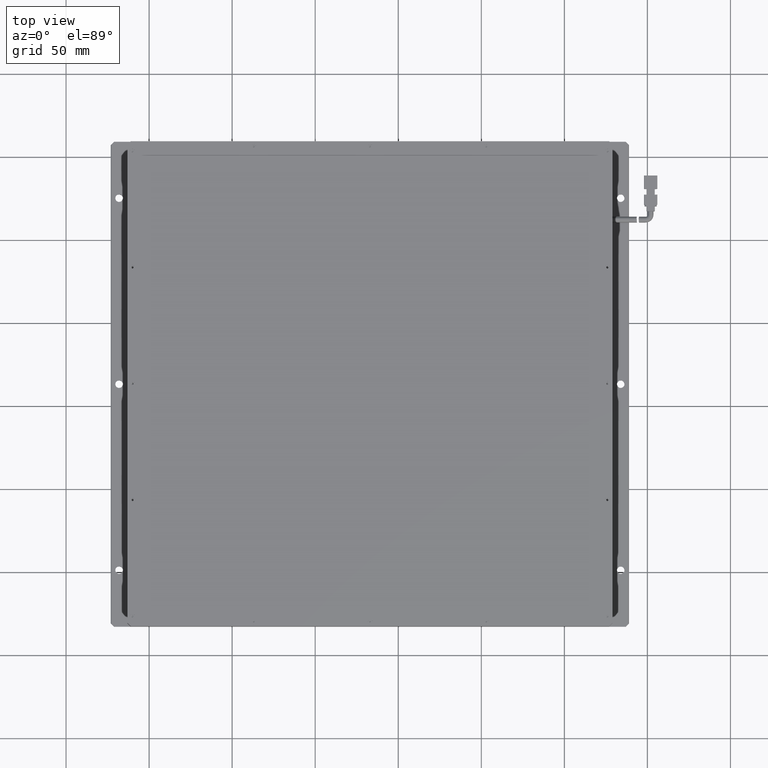
[diagram: clean part render]
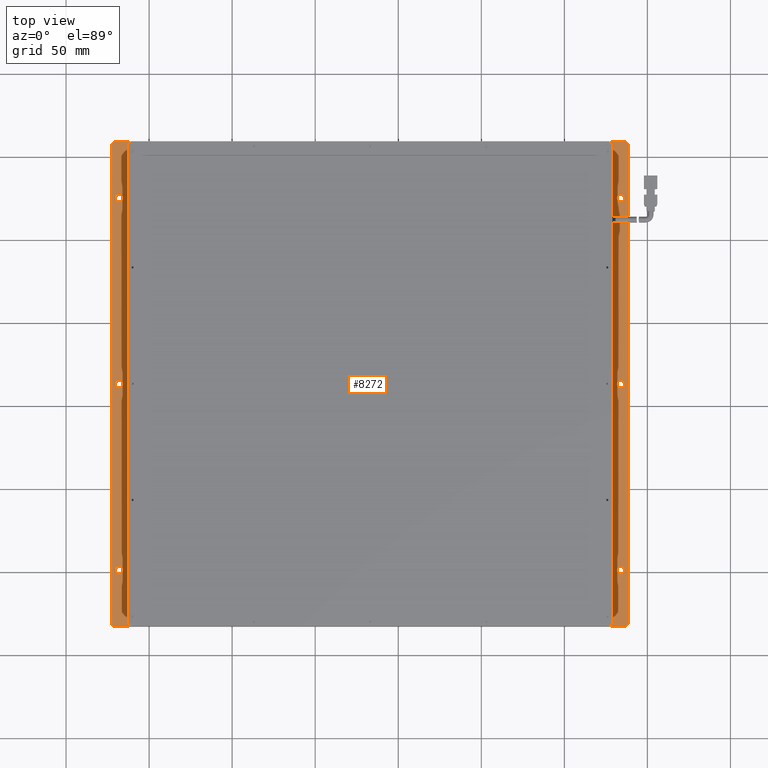
[diagram: same view with one face highlighted and labeled with its STEP entity id]
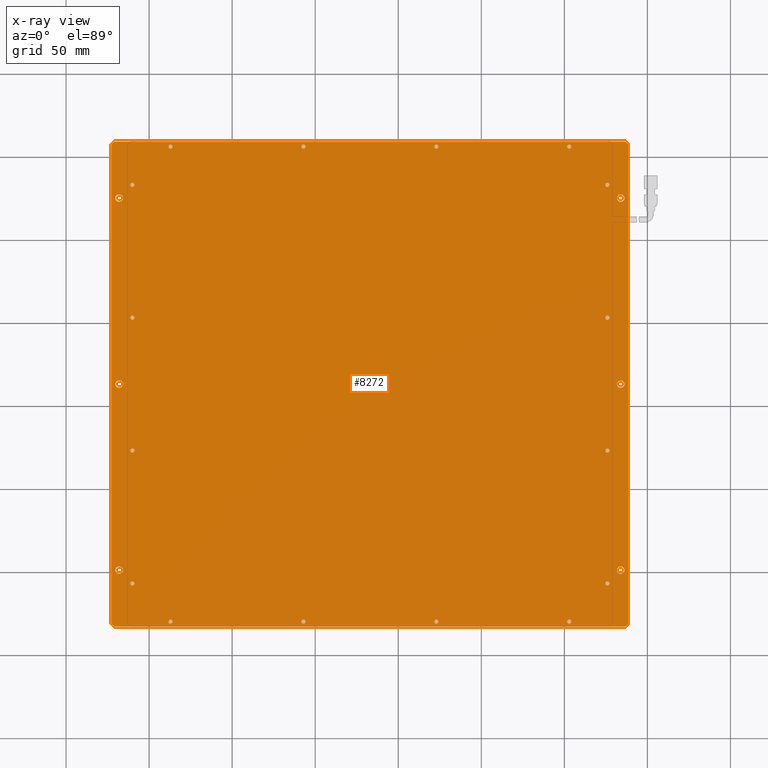
[diagram: x-ray of the same camera — body ghosted, the highlighted face saturated]
A machine part, top view. The second image highlights one B-rep face of the part: STEP entity #8272.
The next image is the same camera in x-ray: the body ghosted, the highlighted face saturated — about 0% of this face is hidden behind the body in this view.
In plain terms, the highlighted planar face has unit normal (0, 0, -1).
Its self-contained STEP definition (entity closure, byte-faithful):
#12 = EDGE_CURVE ( 'NONE', #18729, #13191, #3815, .T. ) ;
#20 = CARTESIAN_POINT ( 'NONE',  ( 177.1193228736580600, -106.7301954307733900, -7.000000000028193400 ) ) ;
#134 = VERTEX_POINT ( 'NONE', #12582 ) ;
#177 = DIRECTION ( 'NONE',  ( 1.000000000000000000, 0.0000000000000000000, 0.0000000000000000000 ) ) ;
#180 = AXIS2_PLACEMENT_3D ( 'NONE', #9994, #9920, #13667 ) ;
#382 = EDGE_CURVE ( 'NONE', #12343, #22332, #19357, .T. ) ;
#425 = ORIENTED_EDGE ( 'NONE', *, *, #3589, .F. ) ;
#486 = EDGE_CURVE ( 'NONE', #13191, #18729, #14755, .T. ) ;
#501 = VERTEX_POINT ( 'NONE', #4826 ) ;
#569 = CIRCLE ( 'NONE', #10581, 2.249999999999974200 ) ;
#608 = FACE_BOUND ( 'NONE', #18105, .T. ) ;
#668 = CARTESIAN_POINT ( 'NONE',  ( -118.0806771263419100, 13.26980456922663400, -7.000000000028193400 ) ) ;
#706 = ORIENTED_EDGE ( 'NONE', *, *, #1933, .F. ) ;
#760 = EDGE_CURVE ( 'NONE', #19823, #15075, #14714, .T. ) ;
#846 = AXIS2_PLACEMENT_3D ( 'NONE', #12182, #1121, #1282 ) ;
#858 = EDGE_LOOP ( 'NONE', ( #23869, #8561 ) ) ;
#996 = EDGE_LOOP ( 'NONE', ( #17823, #22854, #18950, #22894, #12957, #706, #3669, #19163 ) ) ;
#1022 = CARTESIAN_POINT ( 'NONE',  ( 186.9193228736580500, 159.2698045692266900, -7.000000000028196100 ) ) ;
#1040 = CARTESIAN_POINT ( 'NONE',  ( -85.88067712634190800, -129.7301954307733600, -7.000000000028193400 ) ) ;
#1077 = CARTESIAN_POINT ( 'NONE',  ( -122.5806771263419100, 157.7698045692266400, -7.000000000028194300 ) ) ;
#1094 = EDGE_CURVE ( 'NONE', #16707, #134, #5084, .T. ) ;
#1121 = DIRECTION ( 'NONE',  ( 0.0000000000000000000, 0.0000000000000000000, 1.000000000000000000 ) ) ;
#1134 = AXIS2_PLACEMENT_3D ( 'NONE', #18112, #7018, #10968 ) ;
#1142 = DIRECTION ( 'NONE',  ( -1.000000000000000000, 0.0000000000000000000, 0.0000000000000000000 ) ) ;
#1178 = DIRECTION ( 'NONE',  ( -1.000000000000000000, 0.0000000000000000000, 0.0000000000000000000 ) ) ;
#1282 = DIRECTION ( 'NONE',  ( -1.000000000000000000, 0.0000000000000000000, 0.0000000000000000000 ) ) ;
#1497 = ORIENTED_EDGE ( 'NONE', *, *, #12234, .F. ) ;
#1502 = CIRCLE ( 'NONE', #18999, 1.199999999999992600 ) ;
#1840 = VERTEX_POINT ( 'NONE', #20 ) ;
#1850 = CARTESIAN_POINT ( 'NONE',  ( 174.7193228736580900, -106.7301954307733900, -7.000000000028193400 ) ) ;
#1933 = EDGE_CURVE ( 'NONE', #17811, #18976, #17743, .T. ) ;
#1958 = VERTEX_POINT ( 'NONE', #14095 ) ;
#1960 = CARTESIAN_POINT ( 'NONE',  ( 186.1693228736580700, 13.26980456922655100, -7.000000000028193400 ) ) ;
#2043 = CIRCLE ( 'NONE', #20009, 2.249999999999974200 ) ;
#2094 = AXIS2_PLACEMENT_3D ( 'NONE', #7786, #20633, #16926 ) ;
#2126 = EDGE_LOOP ( 'NONE', ( #18806, #5449 ) ) ;
#2180 = VERTEX_POINT ( 'NONE', #21662 ) ;
#2225 = DIRECTION ( 'NONE',  ( 0.0000000000000000000, 0.0000000000000000000, 1.000000000000000000 ) ) ;
#2285 = ORIENTED_EDGE ( 'NONE', *, *, #10576, .F. ) ;
#2322 = CIRCLE ( 'NONE', #10334, 2.249999999999974200 ) ;
#2331 = FACE_BOUND ( 'NONE', #8027, .T. ) ;
#2357 = CARTESIAN_POINT ( 'NONE',  ( -122.5806771263419100, -131.2301954307733900, -7.000000000028197000 ) ) ;
#2516 = EDGE_CURVE ( 'NONE', #11802, #12249, #9592, .T. ) ;
#2619 = CIRCLE ( 'NONE', #22644, 1.199999999999978900 ) ;
#2623 = DIRECTION ( 'NONE',  ( -1.000000000000000000, 0.0000000000000000000, 0.0000000000000000000 ) ) ;
#2636 = CARTESIAN_POINT ( 'NONE',  ( -110.0806771263419100, 133.2698045692266100, -7.000000000028193400 ) ) ;
#2655 = CARTESIAN_POINT ( 'NONE',  ( 188.4193228736579900, 157.7698045692267200, -7.000000000028197900 ) ) ;
#2692 = DIRECTION ( 'NONE',  ( 0.0000000000000000000, 0.0000000000000000000, 1.000000000000000000 ) ) ;
#2716 = DIRECTION ( 'NONE',  ( 0.0000000000000000000, 0.0000000000000000000, 1.000000000000000000 ) ) ;
#2749 = CARTESIAN_POINT ( 'NONE',  ( -110.0806771263419100, -26.73019543077340300, -7.000000000028193400 ) ) ;
#2755 = DIRECTION ( 'NONE',  ( 0.7071067811865483500, 0.7071067811865468000, 0.0000000000000000000 ) ) ;
#2759 = ORIENTED_EDGE ( 'NONE', *, *, #19570, .F. ) ;
#2890 = FACE_BOUND ( 'NONE', #10469, .T. ) ;
#2893 = DIRECTION ( 'NONE',  ( 0.0000000000000000000, 0.0000000000000000000, 1.000000000000000000 ) ) ;
#2909 = CIRCLE ( 'NONE', #21056, 1.199999999999992600 ) ;
#2939 = DIRECTION ( 'NONE',  ( 0.0000000000000000000, 0.0000000000000000000, 1.000000000000000000 ) ) ;
#2947 = DIRECTION ( 'NONE',  ( -0.0000000000000000000, -0.0000000000000000000, 1.000000000000000000 ) ) ;
#2998 = DIRECTION ( 'NONE',  ( -0.0000000000000000000, -0.0000000000000000000, 1.000000000000000000 ) ) ;
#3027 = CARTESIAN_POINT ( 'NONE',  ( 188.4193228736579900, -131.2301954307734800, -7.000000000028194300 ) ) ;
#3070 = CARTESIAN_POINT ( 'NONE',  ( 183.9193228736580700, 125.2698045692265400, -7.000000000028193400 ) ) ;
#3085 = DIRECTION ( 'NONE',  ( 0.0000000000000000000, 0.0000000000000000000, 1.000000000000000000 ) ) ;
#3097 = CARTESIAN_POINT ( 'NONE',  ( -8.280677126341910100, -129.7301954307733600, -7.000000000028193400 ) ) ;
#3128 = AXIS2_PLACEMENT_3D ( 'NONE', #19579, #10360, #21357 ) ;
#3133 = AXIS2_PLACEMENT_3D ( 'NONE', #16567, #23709, #3399 ) ;
#3293 = DIRECTION ( 'NONE',  ( -1.000000000000000000, 0.0000000000000000000, 0.0000000000000000000 ) ) ;
#3298 = CARTESIAN_POINT ( 'NONE',  ( -110.0806771263419100, -26.73019543077340300, -7.000000000028193400 ) ) ;
#3378 = CIRCLE ( 'NONE', #14467, 2.249999999999974200 ) ;
#3399 = DIRECTION ( 'NONE',  ( -1.000000000000000000, 0.0000000000000000000, 0.0000000000000000000 ) ) ;
#3473 = FACE_BOUND ( 'NONE', #16353, .T. ) ;
#3589 = EDGE_CURVE ( 'NONE', #19205, #21531, #22202, .T. ) ;
#3592 = EDGE_CURVE ( 'NONE', #16284, #9391, #6603, .T. ) ;
#3602 = VERTEX_POINT ( 'NONE', #6213 ) ;
#3606 = EDGE_CURVE ( 'NONE', #9342, #23451, #7491, .T. ) ;
#3642 = CARTESIAN_POINT ( 'NONE',  ( -111.2806771263419000, 133.2698045692266100, -7.000000000028193400 ) ) ;
#3659 = EDGE_CURVE ( 'NONE', #7143, #10177, #10364, .T. ) ;
#3669 = ORIENTED_EDGE ( 'NONE', *, *, #14478, .F. ) ;
#3701 = CARTESIAN_POINT ( 'NONE',  ( 188.4193228736579900, 159.2698045692266400, -7.000000000028194300 ) ) ;
#3741 = EDGE_CURVE ( 'NONE', #11503, #17966, #13584, .T. ) ;
#3749 = FACE_BOUND ( 'NONE', #9406, .T. ) ;
#3781 = AXIS2_PLACEMENT_3D ( 'NONE', #14416, #7034, #19959 ) ;
#3815 = CIRCLE ( 'NONE', #3128, 1.199999999999992600 ) ;
#3918 = ORIENTED_EDGE ( 'NONE', *, *, #9599, .F. ) ;
#3953 = DIRECTION ( 'NONE',  ( 0.7071067811865606700, -0.7071067811865344700, 0.0000000000000000000 ) ) ;
#4013 = DIRECTION ( 'NONE',  ( -1.000000000000000000, 0.0000000000000000000, 0.0000000000000000000 ) ) ;
#4300 = CARTESIAN_POINT ( 'NONE',  ( 175.9193228736580700, -26.73019543077340300, -7.000000000028193400 ) ) ;
#4310 = FACE_BOUND ( 'NONE', #7032, .T. ) ;
#4503 = AXIS2_PLACEMENT_3D ( 'NONE', #668, #9976, #15644 ) ;
#4556 = ORIENTED_EDGE ( 'NONE', *, *, #6688, .F. ) ;
#4586 = CIRCLE ( 'NONE', #17826, 1.199999999999978900 ) ;
#4761 = CARTESIAN_POINT ( 'NONE',  ( 175.9193228736580700, -106.7301954307733900, -7.000000000028193400 ) ) ;
#4826 = CARTESIAN_POINT ( 'NONE',  ( -121.0806771263419100, 159.2698045692266400, -7.000000000028194300 ) ) ;
#4827 = EDGE_LOOP ( 'NONE', ( #14541, #1497 ) ) ;
#4833 = CIRCLE ( 'NONE', #14144, 1.199999999999992600 ) ;
#4862 = DIRECTION ( 'NONE',  ( -0.7071067811865474600, 0.7071067811865474600, 0.0000000000000000000 ) ) ;
#4931 = EDGE_CURVE ( 'NONE', #18751, #23355, #9337, .T. ) ;
#4981 = CARTESIAN_POINT ( 'NONE',  ( 175.9193228736580700, 133.2698045692266100, -7.000000000028193400 ) ) ;
#5023 = DIRECTION ( 'NONE',  ( 1.000000000000000000, 0.0000000000000000000, 0.0000000000000000000 ) ) ;
#5061 = CIRCLE ( 'NONE', #11238, 1.199999999999978900 ) ;
#5084 = CIRCLE ( 'NONE', #10247, 1.199999999999978900 ) ;
#5113 = CARTESIAN_POINT ( 'NONE',  ( 181.6693228736581000, -98.73019543077344900, -7.000000000028193400 ) ) ;
#5115 = EDGE_CURVE ( 'NONE', #12249, #11802, #7303, .T. ) ;
#5128 = VECTOR ( 'NONE', #12300, 1000.000000000000000 ) ;
#5144 = DIRECTION ( 'NONE',  ( -1.000000000000000000, 0.0000000000000000000, 0.0000000000000000000 ) ) ;
#5174 = CIRCLE ( 'NONE', #9046, 1.199999999999992600 ) ;
#5231 = CARTESIAN_POINT ( 'NONE',  ( 186.1693228736580700, -98.73019543077344900, -7.000000000028193400 ) ) ;
#5263 = EDGE_CURVE ( 'NONE', #2180, #17750, #21438, .T. ) ;
#5360 = VERTEX_POINT ( 'NONE', #16450 ) ;
#5370 = CIRCLE ( 'NONE', #17714, 1.199999999999978900 ) ;
#5382 = DIRECTION ( 'NONE',  ( -0.0000000000000000000, -0.0000000000000000000, 1.000000000000000000 ) ) ;
#5449 = ORIENTED_EDGE ( 'NONE', *, *, #16594, .F. ) ;
#5523 = DIRECTION ( 'NONE',  ( -1.000000000000000000, 0.0000000000000000000, 0.0000000000000000000 ) ) ;
#5608 = CARTESIAN_POINT ( 'NONE',  ( 177.1193228736580600, 53.26980456922658600, -7.000000000028193400 ) ) ;
#5646 = ORIENTED_EDGE ( 'NONE', *, *, #13787, .F. ) ;
#5735 = PLANE ( 'NONE',  #6545 ) ;
#5736 = EDGE_CURVE ( 'NONE', #8370, #6706, #23134, .T. ) ;
#5899 = CIRCLE ( 'NONE', #6130, 2.249999999999988000 ) ;
#5932 = VERTEX_POINT ( 'NONE', #21747 ) ;
#6013 = AXIS2_PLACEMENT_3D ( 'NONE', #20997, #6136, #11666 ) ;
#6039 = CARTESIAN_POINT ( 'NONE',  ( 151.7193228736580900, -129.7301954307733600, -7.000000000028193400 ) ) ;
#6048 = FACE_BOUND ( 'NONE', #16984, .T. ) ;
#6118 = VERTEX_POINT ( 'NONE', #1850 ) ;
#6130 = AXIS2_PLACEMENT_3D ( 'NONE', #22912, #11821, #15665 ) ;
#6136 = DIRECTION ( 'NONE',  ( 0.0000000000000000000, 0.0000000000000000000, 1.000000000000000000 ) ) ;
#6213 = CARTESIAN_POINT ( 'NONE',  ( -111.2806771263419000, 53.26980456922658600, -7.000000000028193400 ) ) ;
#6214 = CARTESIAN_POINT ( 'NONE',  ( -115.8306771263419100, 125.2698045692265900, -7.000000000028193400 ) ) ;
#6218 = DIRECTION ( 'NONE',  ( 0.0000000000000000000, 0.0000000000000000000, -1.000000000000000000 ) ) ;
#6340 = EDGE_CURVE ( 'NONE', #1840, #6118, #5061, .T. ) ;
#6460 = VERTEX_POINT ( 'NONE', #14499 ) ;
#6545 = AXIS2_PLACEMENT_3D ( 'NONE', #8169, #6218, #22841 ) ;
#6593 = DIRECTION ( 'NONE',  ( 1.000000000000000000, 0.0000000000000000000, 0.0000000000000000000 ) ) ;
#6599 = CARTESIAN_POINT ( 'NONE',  ( -88.28067712634189900, 156.2698045692266400, -7.000000000028193400 ) ) ;
#6603 = CIRCLE ( 'NONE', #180, 1.199999999999992600 ) ;
#6624 = DIRECTION ( 'NONE',  ( 0.0000000000000000000, 0.0000000000000000000, 1.000000000000000000 ) ) ;
#6688 = EDGE_CURVE ( 'NONE', #6706, #8370, #5899, .T. ) ;
#6691 = ORIENTED_EDGE ( 'NONE', *, *, #5263, .F. ) ;
#6697 = CARTESIAN_POINT ( 'NONE',  ( -123.0806771263419100, 159.2698045692266400, -7.000000000028194300 ) ) ;
#6706 = VERTEX_POINT ( 'NONE', #6214 ) ;
#6732 = EDGE_LOOP ( 'NONE', ( #11027, #17500 ) ) ;
#6805 = DIRECTION ( 'NONE',  ( 0.0000000000000000000, 0.0000000000000000000, 1.000000000000000000 ) ) ;
#6825 = EDGE_CURVE ( 'NONE', #23471, #14030, #10810, .T. ) ;
#6913 = CIRCLE ( 'NONE', #20015, 1.199999999999978900 ) ;
#6930 = AXIS2_PLACEMENT_3D ( 'NONE', #2636, #2716, #15553 ) ;
#6993 = CARTESIAN_POINT ( 'NONE',  ( -118.0806771263419100, -98.73019543077346300, -7.000000000028193400 ) ) ;
#7011 = EDGE_LOOP ( 'NONE', ( #6691, #15110 ) ) ;
#7018 = DIRECTION ( 'NONE',  ( 0.0000000000000000000, 0.0000000000000000000, 1.000000000000000000 ) ) ;
#7032 = EDGE_LOOP ( 'NONE', ( #16220, #12638 ) ) ;
#7034 = DIRECTION ( 'NONE',  ( -0.0000000000000000000, -0.0000000000000000000, 1.000000000000000000 ) ) ;
#7142 = CIRCLE ( 'NONE', #21807, 1.199999999999978900 ) ;
#7143 = VERTEX_POINT ( 'NONE', #21932 ) ;
#7191 = AXIS2_PLACEMENT_3D ( 'NONE', #17735, #19566, #8502 ) ;
#7232 = DIRECTION ( 'NONE',  ( 0.0000000000000000000, 0.0000000000000000000, 1.000000000000000000 ) ) ;
#7303 = CIRCLE ( 'NONE', #4503, 2.249999999999988000 ) ;
#7403 = AXIS2_PLACEMENT_3D ( 'NONE', #17833, #6805, #14291 ) ;
#7485 = CIRCLE ( 'NONE', #8296, 1.199999999999978900 ) ;
#7487 = EDGE_CURVE ( 'NONE', #18529, #10849, #9590, .T. ) ;
#7491 = CIRCLE ( 'NONE', #22094, 1.199999999999992600 ) ;
#7554 = AXIS2_PLACEMENT_3D ( 'NONE', #10303, #21392, #17775 ) ;
#7621 = DIRECTION ( 'NONE',  ( -1.000000000000000000, 0.0000000000000000000, 0.0000000000000000000 ) ) ;
#7772 = DIRECTION ( 'NONE',  ( -1.000000000000000000, 0.0000000000000000000, 0.0000000000000000000 ) ) ;
#7786 = CARTESIAN_POINT ( 'NONE',  ( -110.0806771263419100, 133.2698045692266100, -7.000000000028193400 ) ) ;
#7857 = DIRECTION ( 'NONE',  ( -1.000000000000000000, 0.0000000000000000000, 0.0000000000000000000 ) ) ;
#7868 = DIRECTION ( 'NONE',  ( 0.0000000000000000000, 0.0000000000000000000, 1.000000000000000000 ) ) ;
#7875 = EDGE_CURVE ( 'NONE', #17750, #2180, #6913, .T. ) ;
#8027 = EDGE_LOOP ( 'NONE', ( #14846, #20096 ) ) ;
#8066 = CIRCLE ( 'NONE', #17917, 1.199999999999978900 ) ;
#8077 = AXIS2_PLACEMENT_3D ( 'NONE', #10327, #2692, #20289 ) ;
#8078 = FACE_BOUND ( 'NONE', #6732, .T. ) ;
#8154 = EDGE_CURVE ( 'NONE', #23161, #5360, #5174, .T. ) ;
#8169 = CARTESIAN_POINT ( 'NONE',  ( -123.0806771263419100, 159.2698045692266400, -7.000000000028194300 ) ) ;
#8192 = EDGE_CURVE ( 'NONE', #14928, #14734, #2619, .T. ) ;
#8268 = ORIENTED_EDGE ( 'NONE', *, *, #5736, .F. ) ;
#8272 = ADVANCED_FACE ( 'NONE', ( #20225, #14163, #14752, #12141, #2331, #3473, #608, #18228, #15319, #8078, #4310, #18498, #13881, #19628, #2890, #13592, #6048, #21934, #8642, #3749, #10372, #8951, #17056 ), #5735, .F. ) ;
#8296 = AXIS2_PLACEMENT_3D ( 'NONE', #4981, #10661, #5144 ) ;
#8370 = VERTEX_POINT ( 'NONE', #15204 ) ;
#8474 = DIRECTION ( 'NONE',  ( 1.000000000000000000, 0.0000000000000000000, 0.0000000000000000000 ) ) ;
#8487 = CARTESIAN_POINT ( 'NONE',  ( -122.5806771263419100, 159.2698045692266400, -7.000000000028194300 ) ) ;
#8502 = DIRECTION ( 'NONE',  ( 1.000000000000000000, 0.0000000000000000000, 0.0000000000000000000 ) ) ;
#8519 = ORIENTED_EDGE ( 'NONE', *, *, #4931, .F. ) ;
#8561 = ORIENTED_EDGE ( 'NONE', *, *, #21651, .F. ) ;
#8642 = FACE_BOUND ( 'NONE', #2126, .T. ) ;
#8644 = EDGE_CURVE ( 'NONE', #23873, #22064, #569, .T. ) ;
#8648 = AXIS2_PLACEMENT_3D ( 'NONE', #6993, #19922, #5023 ) ;
#8713 = EDGE_CURVE ( 'NONE', #18976, #9573, #18145, .T. ) ;
#8951 = FACE_BOUND ( 'NONE', #10352, .T. ) ;
#9045 = CARTESIAN_POINT ( 'NONE',  ( -5.880677126341924000, -129.7301954307733600, -7.000000000028193400 ) ) ;
#9046 = AXIS2_PLACEMENT_3D ( 'NONE', #14168, #3085, #16011 ) ;
#9090 = CARTESIAN_POINT ( 'NONE',  ( -118.0806771263419100, 13.26980456922663400, -7.000000000028193400 ) ) ;
#9281 = CARTESIAN_POINT ( 'NONE',  ( 186.9193228736580500, 159.2698045692266900, -7.000000000028194300 ) ) ;
#9314 = ORIENTED_EDGE ( 'NONE', *, *, #17944, .F. ) ;
#9320 = EDGE_CURVE ( 'NONE', #23355, #18751, #16508, .T. ) ;
#9337 = CIRCLE ( 'NONE', #8077, 1.199999999999992600 ) ;
#9342 = VERTEX_POINT ( 'NONE', #20946 ) ;
#9375 = DIRECTION ( 'NONE',  ( 0.0000000000000000000, 0.0000000000000000000, 1.000000000000000000 ) ) ;
#9391 = VERTEX_POINT ( 'NONE', #3097 ) ;
#9393 = CARTESIAN_POINT ( 'NONE',  ( -118.0806771263419100, -98.73019543077346300, -7.000000000028193400 ) ) ;
#9406 = EDGE_LOOP ( 'NONE', ( #23375, #10401 ) ) ;
#9573 = VERTEX_POINT ( 'NONE', #19889 ) ;
#9590 = CIRCLE ( 'NONE', #7403, 1.199999999999992600 ) ;
#9592 = CIRCLE ( 'NONE', #10786, 2.249999999999988000 ) ;
#9599 = EDGE_CURVE ( 'NONE', #21782, #3602, #1502, .T. ) ;
#9696 = EDGE_LOOP ( 'NONE', ( #8519, #19580 ) ) ;
#9713 = CARTESIAN_POINT ( 'NONE',  ( 152.9193228736580500, 156.2698045692266400, -7.000000000028193400 ) ) ;
#9898 = DIRECTION ( 'NONE',  ( 0.0000000000000000000, 0.0000000000000000000, 1.000000000000000000 ) ) ;
#9912 = EDGE_CURVE ( 'NONE', #16597, #5932, #2322, .T. ) ;
#9920 = DIRECTION ( 'NONE',  ( 0.0000000000000000000, 0.0000000000000000000, 1.000000000000000000 ) ) ;
#9976 = DIRECTION ( 'NONE',  ( -0.0000000000000000000, -0.0000000000000000000, 1.000000000000000000 ) ) ;
#9980 = CARTESIAN_POINT ( 'NONE',  ( -108.8806771263419200, 53.26980456922658600, -7.000000000028193400 ) ) ;
#9994 = CARTESIAN_POINT ( 'NONE',  ( -7.080677126341916100, -129.7301954307733600, -7.000000000028193400 ) ) ;
#10057 = CARTESIAN_POINT ( 'NONE',  ( -115.8306771263419100, -98.73019543077346300, -7.000000000028193400 ) ) ;
#10113 = AXIS2_PLACEMENT_3D ( 'NONE', #11952, #2893, #15807 ) ;
#10177 = VERTEX_POINT ( 'NONE', #2357 ) ;
#10247 = AXIS2_PLACEMENT_3D ( 'NONE', #9713, #17738, #10266 ) ;
#10266 = DIRECTION ( 'NONE',  ( -1.000000000000000000, 0.0000000000000000000, 0.0000000000000000000 ) ) ;
#10303 = CARTESIAN_POINT ( 'NONE',  ( 175.9193228736580700, 133.2698045692266100, -7.000000000028193400 ) ) ;
#10327 = CARTESIAN_POINT ( 'NONE',  ( -7.080677126341916100, 156.2698045692266400, -7.000000000028193400 ) ) ;
#10329 = CARTESIAN_POINT ( 'NONE',  ( 72.91932287365810300, -129.7301954307733600, -7.000000000028193400 ) ) ;
#10334 = AXIS2_PLACEMENT_3D ( 'NONE', #3070, #17870, #6593 ) ;
#10348 = CARTESIAN_POINT ( 'NONE',  ( -85.88067712634190800, 156.2698045692266400, -7.000000000028193400 ) ) ;
#10352 = EDGE_LOOP ( 'NONE', ( #12105, #23169 ) ) ;
#10360 = DIRECTION ( 'NONE',  ( 0.0000000000000000000, 0.0000000000000000000, 1.000000000000000000 ) ) ;
#10364 = LINE ( 'NONE', #22680, #16745 ) ;
#10372 = FACE_BOUND ( 'NONE', #9696, .T. ) ;
#10386 = CIRCLE ( 'NONE', #13107, 2.249999999999988000 ) ;
#10401 = ORIENTED_EDGE ( 'NONE', *, *, #15937, .F. ) ;
#10404 = EDGE_CURVE ( 'NONE', #11413, #13670, #20167, .T. ) ;
#10443 = CARTESIAN_POINT ( 'NONE',  ( -110.0806771263419100, -106.7301954307733900, -7.000000000028193400 ) ) ;
#10468 = DIRECTION ( 'NONE',  ( 0.0000000000000000000, 0.0000000000000000000, 1.000000000000000000 ) ) ;
#10469 = EDGE_LOOP ( 'NONE', ( #9314, #21572 ) ) ;
#10474 = CARTESIAN_POINT ( 'NONE',  ( 175.9193228736580700, 53.26980456922658600, -7.000000000028193400 ) ) ;
#10576 = EDGE_CURVE ( 'NONE', #134, #16707, #7142, .T. ) ;
#10581 = AXIS2_PLACEMENT_3D ( 'NONE', #12929, #5382, #177 ) ;
#10661 = DIRECTION ( 'NONE',  ( 0.0000000000000000000, 0.0000000000000000000, 1.000000000000000000 ) ) ;
#10716 = AXIS2_PLACEMENT_3D ( 'NONE', #12149, #2939, #15933 ) ;
#10737 = CIRCLE ( 'NONE', #13020, 1.199999999999992600 ) ;
#10786 = AXIS2_PLACEMENT_3D ( 'NONE', #9090, #18386, #13240 ) ;
#10810 = CIRCLE ( 'NONE', #7554, 1.199999999999978900 ) ;
#10836 = EDGE_LOOP ( 'NONE', ( #17424, #20888 ) ) ;
#10849 = VERTEX_POINT ( 'NONE', #10348 ) ;
#10874 = CARTESIAN_POINT ( 'NONE',  ( 74.11932287365807800, 156.2698045692266400, -7.000000000028193400 ) ) ;
#10881 = EDGE_LOOP ( 'NONE', ( #2285, #18636 ) ) ;
#10927 = LINE ( 'NONE', #6697, #20186 ) ;
#10968 = DIRECTION ( 'NONE',  ( -1.000000000000000000, 0.0000000000000000000, 0.0000000000000000000 ) ) ;
#11027 = ORIENTED_EDGE ( 'NONE', *, *, #3606, .F. ) ;
#11156 = ORIENTED_EDGE ( 'NONE', *, *, #13825, .F. ) ;
#11237 = AXIS2_PLACEMENT_3D ( 'NONE', #10443, #21277, #19578 ) ;
#11238 = AXIS2_PLACEMENT_3D ( 'NONE', #17727, #6624, #21182 ) ;
#11383 = CARTESIAN_POINT ( 'NONE',  ( -123.0806771263419100, -132.7301954307734200, -7.000000000028194300 ) ) ;
#11413 = VERTEX_POINT ( 'NONE', #10057 ) ;
#11483 = ORIENTED_EDGE ( 'NONE', *, *, #12680, .F. ) ;
#11503 = VERTEX_POINT ( 'NONE', #19266 ) ;
#11547 = DIRECTION ( 'NONE',  ( -1.000000000000000000, 0.0000000000000000000, -0.0000000000000000000 ) ) ;
#11585 = CARTESIAN_POINT ( 'NONE',  ( -108.8806771263419200, 133.2698045692266100, -7.000000000028193400 ) ) ;
#11666 = DIRECTION ( 'NONE',  ( -1.000000000000000000, 0.0000000000000000000, 0.0000000000000000000 ) ) ;
#11802 = VERTEX_POINT ( 'NONE', #20560 ) ;
#11821 = DIRECTION ( 'NONE',  ( -0.0000000000000000000, -0.0000000000000000000, 1.000000000000000000 ) ) ;
#11923 = DIRECTION ( 'NONE',  ( 0.0000000000000000000, 0.0000000000000000000, 1.000000000000000000 ) ) ;
#11952 = CARTESIAN_POINT ( 'NONE',  ( 72.91932287365810300, 156.2698045692266400, -7.000000000028193400 ) ) ;
#11988 = CARTESIAN_POINT ( 'NONE',  ( -120.3306771263419000, -98.73019543077346300, -7.000000000028193400 ) ) ;
#12105 = ORIENTED_EDGE ( 'NONE', *, *, #21414, .F. ) ;
#12136 = CIRCLE ( 'NONE', #11237, 1.199999999999992600 ) ;
#12141 = FACE_BOUND ( 'NONE', #18921, .T. ) ;
#12149 = CARTESIAN_POINT ( 'NONE',  ( -87.08067712634191100, -129.7301954307733600, -7.000000000028193400 ) ) ;
#12182 = CARTESIAN_POINT ( 'NONE',  ( 175.9193228736580700, -26.73019543077340300, -7.000000000028193400 ) ) ;
#12223 = EDGE_LOOP ( 'NONE', ( #11483, #425 ) ) ;
#12234 = EDGE_CURVE ( 'NONE', #15196, #14535, #17222, .T. ) ;
#12249 = VERTEX_POINT ( 'NONE', #12469 ) ;
#12273 = VECTOR ( 'NONE', #11547, 1000.000000000000000 ) ;
#12300 = DIRECTION ( 'NONE',  ( 0.0000000000000000000, 1.000000000000000000, 0.0000000000000000000 ) ) ;
#12343 = VERTEX_POINT ( 'NONE', #3642 ) ;
#12469 = CARTESIAN_POINT ( 'NONE',  ( -115.8306771263419100, 13.26980456922663400, -7.000000000028193400 ) ) ;
#12531 = DIRECTION ( 'NONE',  ( 0.0000000000000000000, 0.0000000000000000000, 1.000000000000000000 ) ) ;
#12582 = CARTESIAN_POINT ( 'NONE',  ( 151.7193228736580900, 156.2698045692266400, -7.000000000028193400 ) ) ;
#12638 = ORIENTED_EDGE ( 'NONE', *, *, #8154, .F. ) ;
#12680 = EDGE_CURVE ( 'NONE', #21531, #19205, #13981, .T. ) ;
#12752 = DIRECTION ( 'NONE',  ( 0.0000000000000000000, 0.0000000000000000000, 1.000000000000000000 ) ) ;
#12782 = AXIS2_PLACEMENT_3D ( 'NONE', #10474, #12531, #1142 ) ;
#12929 = CARTESIAN_POINT ( 'NONE',  ( 183.9193228736580700, 13.26980456922655100, -7.000000000028193400 ) ) ;
#12957 = ORIENTED_EDGE ( 'NONE', *, *, #8713, .F. ) ;
#13020 = AXIS2_PLACEMENT_3D ( 'NONE', #13376, #2225, #7857 ) ;
#13107 = AXIS2_PLACEMENT_3D ( 'NONE', #9393, #17000, #22544 ) ;
#13191 = VERTEX_POINT ( 'NONE', #1040 ) ;
#13240 = DIRECTION ( 'NONE',  ( 1.000000000000000000, 0.0000000000000000000, 0.0000000000000000000 ) ) ;
#13376 = CARTESIAN_POINT ( 'NONE',  ( -87.08067712634191100, 156.2698045692266400, -7.000000000028193400 ) ) ;
#13515 = EDGE_CURVE ( 'NONE', #13670, #11413, #10386, .T. ) ;
#13584 = CIRCLE ( 'NONE', #21647, 1.199999999999978900 ) ;
#13592 = FACE_BOUND ( 'NONE', #10836, .T. ) ;
#13667 = DIRECTION ( 'NONE',  ( -1.000000000000000000, 0.0000000000000000000, 0.0000000000000000000 ) ) ;
#13670 = VERTEX_POINT ( 'NONE', #11988 ) ;
#13703 = LINE ( 'NONE', #11383, #12273 ) ;
#13735 = LINE ( 'NONE', #1077, #22948 ) ;
#13787 = EDGE_CURVE ( 'NONE', #17966, #11503, #8066, .T. ) ;
#13789 = EDGE_CURVE ( 'NONE', #10177, #6460, #23628, .T. ) ;
#13814 = DIRECTION ( 'NONE',  ( -1.000000000000000000, 0.0000000000000000000, 0.0000000000000000000 ) ) ;
#13825 = EDGE_CURVE ( 'NONE', #14030, #23471, #7485, .T. ) ;
#13852 = CARTESIAN_POINT ( 'NONE',  ( -7.080677126341916100, 156.2698045692266400, -7.000000000028193400 ) ) ;
#13881 = FACE_BOUND ( 'NONE', #12223, .T. ) ;
#13914 = DIRECTION ( 'NONE',  ( 0.0000000000000000000, 0.0000000000000000000, 1.000000000000000000 ) ) ;
#13981 = CIRCLE ( 'NONE', #12782, 1.199999999999978900 ) ;
#14030 = VERTEX_POINT ( 'NONE', #18431 ) ;
#14058 = CARTESIAN_POINT ( 'NONE',  ( 183.9193228736580700, 125.2698045692265400, -7.000000000028193400 ) ) ;
#14095 = CARTESIAN_POINT ( 'NONE',  ( 186.9193228736580500, -132.7301954307733600, -7.000000000028194300 ) ) ;
#14144 = AXIS2_PLACEMENT_3D ( 'NONE', #14304, #12752, #3293 ) ;
#14163 = FACE_BOUND ( 'NONE', #4827, .T. ) ;
#14167 = ORIENTED_EDGE ( 'NONE', *, *, #17512, .F. ) ;
#14168 = CARTESIAN_POINT ( 'NONE',  ( -110.0806771263419100, -106.7301954307733900, -7.000000000028193400 ) ) ;
#14254 = ORIENTED_EDGE ( 'NONE', *, *, #6825, .F. ) ;
#14291 = DIRECTION ( 'NONE',  ( -1.000000000000000000, 0.0000000000000000000, 0.0000000000000000000 ) ) ;
#14304 = CARTESIAN_POINT ( 'NONE',  ( -7.080677126341916100, -129.7301954307733600, -7.000000000028193400 ) ) ;
#14416 = CARTESIAN_POINT ( 'NONE',  ( 183.9193228736580700, -98.73019543077344900, -7.000000000028193400 ) ) ;
#14467 = AXIS2_PLACEMENT_3D ( 'NONE', #19893, #2947, #21660 ) ;
#14478 = EDGE_CURVE ( 'NONE', #501, #17811, #10927, .T. ) ;
#14499 = CARTESIAN_POINT ( 'NONE',  ( -122.5806771263419100, 157.7698045692266400, -7.000000000028195200 ) ) ;
#14535 = VERTEX_POINT ( 'NONE', #5231 ) ;
#14541 = ORIENTED_EDGE ( 'NONE', *, *, #17980, .F. ) ;
#14571 = CARTESIAN_POINT ( 'NONE',  ( 154.1193228736580400, -129.7301954307733600, -7.000000000028193400 ) ) ;
#14714 = CIRCLE ( 'NONE', #10113, 1.199999999999978900 ) ;
#14734 = VERTEX_POINT ( 'NONE', #14571 ) ;
#14752 = FACE_BOUND ( 'NONE', #858, .T. ) ;
#14755 = CIRCLE ( 'NONE', #10716, 1.199999999999992600 ) ;
#14846 = ORIENTED_EDGE ( 'NONE', *, *, #10404, .F. ) ;
#14928 = VERTEX_POINT ( 'NONE', #6039 ) ;
#14989 = CARTESIAN_POINT ( 'NONE',  ( -108.8806771263419200, -26.73019543077340300, -7.000000000028193400 ) ) ;
#15057 = DIRECTION ( 'NONE',  ( 0.0000000000000000000, 0.0000000000000000000, 1.000000000000000000 ) ) ;
#15075 = VERTEX_POINT ( 'NONE', #19520 ) ;
#15110 = ORIENTED_EDGE ( 'NONE', *, *, #7875, .F. ) ;
#15166 = DIRECTION ( 'NONE',  ( 0.0000000000000000000, 0.0000000000000000000, 1.000000000000000000 ) ) ;
#15196 = VERTEX_POINT ( 'NONE', #5113 ) ;
#15204 = CARTESIAN_POINT ( 'NONE',  ( -120.3306771263419000, 125.2698045692265900, -7.000000000028193400 ) ) ;
#15216 = ORIENTED_EDGE ( 'NONE', *, *, #21382, .F. ) ;
#15319 = FACE_BOUND ( 'NONE', #18728, .T. ) ;
#15425 = EDGE_CURVE ( 'NONE', #1958, #7143, #13703, .T. ) ;
#15515 = EDGE_CURVE ( 'NONE', #22332, #12343, #17469, .T. ) ;
#15553 = DIRECTION ( 'NONE',  ( -1.000000000000000000, 0.0000000000000000000, 0.0000000000000000000 ) ) ;
#15644 = DIRECTION ( 'NONE',  ( 1.000000000000000000, 0.0000000000000000000, 0.0000000000000000000 ) ) ;
#15657 = EDGE_CURVE ( 'NONE', #9573, #1958, #17138, .T. ) ;
#15665 = DIRECTION ( 'NONE',  ( 1.000000000000000000, 0.0000000000000000000, 0.0000000000000000000 ) ) ;
#15706 = DIRECTION ( 'NONE',  ( -1.000000000000000000, 0.0000000000000000000, 0.0000000000000000000 ) ) ;
#15807 = DIRECTION ( 'NONE',  ( -1.000000000000000000, 0.0000000000000000000, 0.0000000000000000000 ) ) ;
#15817 = DIRECTION ( 'NONE',  ( -1.000000000000000000, 0.0000000000000000000, 0.0000000000000000000 ) ) ;
#15888 = ORIENTED_EDGE ( 'NONE', *, *, #382, .F. ) ;
#15933 = DIRECTION ( 'NONE',  ( -1.000000000000000000, 0.0000000000000000000, 0.0000000000000000000 ) ) ;
#15937 = EDGE_CURVE ( 'NONE', #10849, #18529, #10737, .T. ) ;
#16011 = DIRECTION ( 'NONE',  ( -1.000000000000000000, 0.0000000000000000000, 0.0000000000000000000 ) ) ;
#16220 = ORIENTED_EDGE ( 'NONE', *, *, #23091, .F. ) ;
#16284 = VERTEX_POINT ( 'NONE', #9045 ) ;
#16353 = EDGE_LOOP ( 'NONE', ( #21614, #17439 ) ) ;
#16450 = CARTESIAN_POINT ( 'NONE',  ( -111.2806771263419000, -106.7301954307733900, -7.000000000028193400 ) ) ;
#16506 = CARTESIAN_POINT ( 'NONE',  ( -110.0806771263419100, 53.26980456922658600, -7.000000000028193400 ) ) ;
#16508 = CIRCLE ( 'NONE', #19142, 1.199999999999992600 ) ;
#16567 = CARTESIAN_POINT ( 'NONE',  ( -110.0806771263419100, 53.26980456922658600, -7.000000000028193400 ) ) ;
#16594 = EDGE_CURVE ( 'NONE', #14734, #14928, #4586, .T. ) ;
#16597 = VERTEX_POINT ( 'NONE', #20665 ) ;
#16621 = CARTESIAN_POINT ( 'NONE',  ( 152.9193228736580500, 156.2698045692266400, -7.000000000028193400 ) ) ;
#16707 = VERTEX_POINT ( 'NONE', #22585 ) ;
#16723 = EDGE_CURVE ( 'NONE', #23451, #9342, #2909, .T. ) ;
#16745 = VECTOR ( 'NONE', #4862, 1000.000000000000100 ) ;
#16926 = DIRECTION ( 'NONE',  ( -1.000000000000000000, 0.0000000000000000000, 0.0000000000000000000 ) ) ;
#16984 = EDGE_LOOP ( 'NONE', ( #14167, #21035 ) ) ;
#16988 = CARTESIAN_POINT ( 'NONE',  ( 152.9193228736580500, -129.7301954307733600, -7.000000000028193400 ) ) ;
#17000 = DIRECTION ( 'NONE',  ( -0.0000000000000000000, -0.0000000000000000000, 1.000000000000000000 ) ) ;
#17056 = FACE_BOUND ( 'NONE', #10881, .T. ) ;
#17138 = LINE ( 'NONE', #3027, #19440 ) ;
#17222 = CIRCLE ( 'NONE', #3781, 2.249999999999974200 ) ;
#17250 = CARTESIAN_POINT ( 'NONE',  ( 177.1193228736580600, -26.73019543077340300, -7.000000000028193400 ) ) ;
#17381 = CIRCLE ( 'NONE', #3133, 1.199999999999992600 ) ;
#17424 = ORIENTED_EDGE ( 'NONE', *, *, #12, .F. ) ;
#17439 = ORIENTED_EDGE ( 'NONE', *, *, #2516, .F. ) ;
#17469 = CIRCLE ( 'NONE', #6930, 1.199999999999992600 ) ;
#17500 = ORIENTED_EDGE ( 'NONE', *, *, #16723, .F. ) ;
#17512 = EDGE_CURVE ( 'NONE', #9391, #16284, #4833, .T. ) ;
#17556 = DIRECTION ( 'NONE',  ( -1.000000000000000000, 0.0000000000000000000, 0.0000000000000000000 ) ) ;
#17714 = AXIS2_PLACEMENT_3D ( 'NONE', #4761, #23415, #1178 ) ;
#17727 = CARTESIAN_POINT ( 'NONE',  ( 175.9193228736580700, -106.7301954307733900, -7.000000000028193400 ) ) ;
#17735 = CARTESIAN_POINT ( 'NONE',  ( -118.0806771263419100, 125.2698045692265900, -7.000000000028193400 ) ) ;
#17738 = DIRECTION ( 'NONE',  ( 0.0000000000000000000, 0.0000000000000000000, 1.000000000000000000 ) ) ;
#17743 = LINE ( 'NONE', #9281, #21755 ) ;
#17750 = VERTEX_POINT ( 'NONE', #17250 ) ;
#17775 = DIRECTION ( 'NONE',  ( -1.000000000000000000, 0.0000000000000000000, 0.0000000000000000000 ) ) ;
#17811 = VERTEX_POINT ( 'NONE', #1022 ) ;
#17823 = ORIENTED_EDGE ( 'NONE', *, *, #13789, .F. ) ;
#17826 = AXIS2_PLACEMENT_3D ( 'NONE', #18591, #9898, #15817 ) ;
#17833 = CARTESIAN_POINT ( 'NONE',  ( -87.08067712634191100, 156.2698045692266400, -7.000000000028193400 ) ) ;
#17870 = DIRECTION ( 'NONE',  ( -0.0000000000000000000, -0.0000000000000000000, 1.000000000000000000 ) ) ;
#17917 = AXIS2_PLACEMENT_3D ( 'NONE', #10329, #13914, #17556 ) ;
#17944 = EDGE_CURVE ( 'NONE', #6118, #1840, #5370, .T. ) ;
#17966 = VERTEX_POINT ( 'NONE', #21427 ) ;
#17980 = EDGE_CURVE ( 'NONE', #14535, #15196, #3378, .T. ) ;
#18105 = EDGE_LOOP ( 'NONE', ( #4556, #8268 ) ) ;
#18112 = CARTESIAN_POINT ( 'NONE',  ( 72.91932287365810300, 156.2698045692266400, -7.000000000028193400 ) ) ;
#18145 = LINE ( 'NONE', #3701, #22435 ) ;
#18228 = FACE_BOUND ( 'NONE', #22440, .T. ) ;
#18325 = EDGE_LOOP ( 'NONE', ( #11156, #14254 ) ) ;
#18353 = ORIENTED_EDGE ( 'NONE', *, *, #15515, .F. ) ;
#18386 = DIRECTION ( 'NONE',  ( -0.0000000000000000000, -0.0000000000000000000, 1.000000000000000000 ) ) ;
#18431 = CARTESIAN_POINT ( 'NONE',  ( 174.7193228736580900, 133.2698045692266100, -7.000000000028193400 ) ) ;
#18461 = EDGE_CURVE ( 'NONE', #6460, #501, #13735, .T. ) ;
#18498 = FACE_BOUND ( 'NONE', #18325, .T. ) ;
#18503 = DIRECTION ( 'NONE',  ( -0.0000000000000000000, -1.000000000000000000, -0.0000000000000000000 ) ) ;
#18529 = VERTEX_POINT ( 'NONE', #6599 ) ;
#18586 = CARTESIAN_POINT ( 'NONE',  ( -88.28067712634189900, -129.7301954307733600, -7.000000000028193400 ) ) ;
#18591 = CARTESIAN_POINT ( 'NONE',  ( 152.9193228736580500, -129.7301954307733600, -7.000000000028193400 ) ) ;
#18636 = ORIENTED_EDGE ( 'NONE', *, *, #1094, .F. ) ;
#18728 = EDGE_LOOP ( 'NONE', ( #15216, #3918 ) ) ;
#18729 = VERTEX_POINT ( 'NONE', #18586 ) ;
#18751 = VERTEX_POINT ( 'NONE', #20273 ) ;
#18806 = ORIENTED_EDGE ( 'NONE', *, *, #8192, .F. ) ;
#18902 = CARTESIAN_POINT ( 'NONE',  ( 183.9193228736580700, 13.26980456922655100, -7.000000000028193400 ) ) ;
#18921 = EDGE_LOOP ( 'NONE', ( #2759, #23703 ) ) ;
#18950 = ORIENTED_EDGE ( 'NONE', *, *, #15425, .F. ) ;
#18976 = VERTEX_POINT ( 'NONE', #2655 ) ;
#18999 = AXIS2_PLACEMENT_3D ( 'NONE', #16506, #9375, #7621 ) ;
#19142 = AXIS2_PLACEMENT_3D ( 'NONE', #13852, #11923, #15706 ) ;
#19146 = ORIENTED_EDGE ( 'NONE', *, *, #3741, .F. ) ;
#19163 = ORIENTED_EDGE ( 'NONE', *, *, #18461, .F. ) ;
#19205 = VERTEX_POINT ( 'NONE', #5608 ) ;
#19266 = CARTESIAN_POINT ( 'NONE',  ( 74.11932287365807800, -129.7301954307733600, -7.000000000028193400 ) ) ;
#19357 = CIRCLE ( 'NONE', #2094, 1.199999999999992600 ) ;
#19440 = VECTOR ( 'NONE', #23421, 1000.000000000000100 ) ;
#19520 = CARTESIAN_POINT ( 'NONE',  ( 71.71932287365811500, 156.2698045692266400, -7.000000000028193400 ) ) ;
#19566 = DIRECTION ( 'NONE',  ( -0.0000000000000000000, -0.0000000000000000000, 1.000000000000000000 ) ) ;
#19570 = EDGE_CURVE ( 'NONE', #5932, #16597, #23113, .T. ) ;
#19578 = DIRECTION ( 'NONE',  ( -1.000000000000000000, 0.0000000000000000000, 0.0000000000000000000 ) ) ;
#19579 = CARTESIAN_POINT ( 'NONE',  ( -87.08067712634191100, -129.7301954307733600, -7.000000000028193400 ) ) ;
#19580 = ORIENTED_EDGE ( 'NONE', *, *, #9320, .F. ) ;
#19628 = FACE_BOUND ( 'NONE', #7011, .T. ) ;
#19823 = VERTEX_POINT ( 'NONE', #10874 ) ;
#19889 = CARTESIAN_POINT ( 'NONE',  ( 188.4193228736579900, -131.2301954307735100, -7.000000000028204100 ) ) ;
#19893 = CARTESIAN_POINT ( 'NONE',  ( 183.9193228736580700, -98.73019543077344900, -7.000000000028193400 ) ) ;
#19906 = CARTESIAN_POINT ( 'NONE',  ( -5.880677126341924000, 156.2698045692266400, -7.000000000028193400 ) ) ;
#19922 = DIRECTION ( 'NONE',  ( -0.0000000000000000000, -0.0000000000000000000, 1.000000000000000000 ) ) ;
#19959 = DIRECTION ( 'NONE',  ( 1.000000000000000000, 0.0000000000000000000, 0.0000000000000000000 ) ) ;
#20009 = AXIS2_PLACEMENT_3D ( 'NONE', #18902, #22580, #22733 ) ;
#20015 = AXIS2_PLACEMENT_3D ( 'NONE', #4300, #7868, #2623 ) ;
#20096 = ORIENTED_EDGE ( 'NONE', *, *, #13515, .F. ) ;
#20167 = CIRCLE ( 'NONE', #8648, 2.249999999999988000 ) ;
#20186 = VECTOR ( 'NONE', #22927, 1000.000000000000000 ) ;
#20225 = FACE_OUTER_BOUND ( 'NONE', #996, .T. ) ;
#20273 = CARTESIAN_POINT ( 'NONE',  ( -8.280677126341910100, 156.2698045692266400, -7.000000000028193400 ) ) ;
#20289 = DIRECTION ( 'NONE',  ( -1.000000000000000000, 0.0000000000000000000, 0.0000000000000000000 ) ) ;
#20395 = AXIS2_PLACEMENT_3D ( 'NONE', #14058, #2998, #8474 ) ;
#20432 = CARTESIAN_POINT ( 'NONE',  ( 174.7193228736580900, 53.26980456922658600, -7.000000000028193400 ) ) ;
#20560 = CARTESIAN_POINT ( 'NONE',  ( -120.3306771263419000, 13.26980456922663400, -7.000000000028193400 ) ) ;
#20633 = DIRECTION ( 'NONE',  ( 0.0000000000000000000, 0.0000000000000000000, 1.000000000000000000 ) ) ;
#20651 = CARTESIAN_POINT ( 'NONE',  ( 72.91932287365810300, -129.7301954307733600, -7.000000000028193400 ) ) ;
#20665 = CARTESIAN_POINT ( 'NONE',  ( 181.6693228736581000, 125.2698045692265400, -7.000000000028193400 ) ) ;
#20888 = ORIENTED_EDGE ( 'NONE', *, *, #486, .F. ) ;
#20946 = CARTESIAN_POINT ( 'NONE',  ( -111.2806771263419000, -26.73019543077340300, -7.000000000028193400 ) ) ;
#20997 = CARTESIAN_POINT ( 'NONE',  ( 175.9193228736580700, 53.26980456922658600, -7.000000000028193400 ) ) ;
#21035 = ORIENTED_EDGE ( 'NONE', *, *, #3592, .F. ) ;
#21056 = AXIS2_PLACEMENT_3D ( 'NONE', #3298, #10468, #23373 ) ;
#21148 = DIRECTION ( 'NONE',  ( 0.0000000000000000000, 0.0000000000000000000, 1.000000000000000000 ) ) ;
#21182 = DIRECTION ( 'NONE',  ( -1.000000000000000000, 0.0000000000000000000, 0.0000000000000000000 ) ) ;
#21277 = DIRECTION ( 'NONE',  ( 0.0000000000000000000, 0.0000000000000000000, 1.000000000000000000 ) ) ;
#21304 = EDGE_LOOP ( 'NONE', ( #5646, #19146 ) ) ;
#21357 = DIRECTION ( 'NONE',  ( -1.000000000000000000, 0.0000000000000000000, 0.0000000000000000000 ) ) ;
#21382 = EDGE_CURVE ( 'NONE', #3602, #21782, #17381, .T. ) ;
#21392 = DIRECTION ( 'NONE',  ( 0.0000000000000000000, 0.0000000000000000000, 1.000000000000000000 ) ) ;
#21414 = EDGE_CURVE ( 'NONE', #15075, #19823, #21951, .T. ) ;
#21427 = CARTESIAN_POINT ( 'NONE',  ( 71.71932287365811500, -129.7301954307733600, -7.000000000028193400 ) ) ;
#21438 = CIRCLE ( 'NONE', #846, 1.199999999999978900 ) ;
#21441 = CARTESIAN_POINT ( 'NONE',  ( -108.8806771263419200, -106.7301954307733900, -7.000000000028193400 ) ) ;
#21531 = VERTEX_POINT ( 'NONE', #20432 ) ;
#21572 = ORIENTED_EDGE ( 'NONE', *, *, #6340, .F. ) ;
#21614 = ORIENTED_EDGE ( 'NONE', *, *, #5115, .F. ) ;
#21647 = AXIS2_PLACEMENT_3D ( 'NONE', #20651, #15166, #4013 ) ;
#21651 = EDGE_CURVE ( 'NONE', #22064, #23873, #2043, .T. ) ;
#21660 = DIRECTION ( 'NONE',  ( 1.000000000000000000, 0.0000000000000000000, 0.0000000000000000000 ) ) ;
#21662 = CARTESIAN_POINT ( 'NONE',  ( 174.7193228736580900, -26.73019543077340300, -7.000000000028193400 ) ) ;
#21747 = CARTESIAN_POINT ( 'NONE',  ( 186.1693228736580700, 125.2698045692265400, -7.000000000028193400 ) ) ;
#21755 = VECTOR ( 'NONE', #3953, 1000.000000000000000 ) ;
#21782 = VERTEX_POINT ( 'NONE', #9980 ) ;
#21807 = AXIS2_PLACEMENT_3D ( 'NONE', #16621, #7232, #5523 ) ;
#21932 = CARTESIAN_POINT ( 'NONE',  ( -121.0806771263419000, -132.7301954307733600, -7.000000000028194300 ) ) ;
#21934 = FACE_BOUND ( 'NONE', #21304, .T. ) ;
#21951 = CIRCLE ( 'NONE', #1134, 1.199999999999978900 ) ;
#22064 = VERTEX_POINT ( 'NONE', #23766 ) ;
#22094 = AXIS2_PLACEMENT_3D ( 'NONE', #2749, #21148, #13814 ) ;
#22202 = CIRCLE ( 'NONE', #6013, 1.199999999999978900 ) ;
#22332 = VERTEX_POINT ( 'NONE', #11585 ) ;
#22377 = CARTESIAN_POINT ( 'NONE',  ( 177.1193228736580600, 133.2698045692266100, -7.000000000028193400 ) ) ;
#22435 = VECTOR ( 'NONE', #18503, 1000.000000000000000 ) ;
#22440 = EDGE_LOOP ( 'NONE', ( #15888, #18353 ) ) ;
#22544 = DIRECTION ( 'NONE',  ( 1.000000000000000000, 0.0000000000000000000, 0.0000000000000000000 ) ) ;
#22580 = DIRECTION ( 'NONE',  ( -0.0000000000000000000, -0.0000000000000000000, 1.000000000000000000 ) ) ;
#22585 = CARTESIAN_POINT ( 'NONE',  ( 154.1193228736580400, 156.2698045692266400, -7.000000000028193400 ) ) ;
#22644 = AXIS2_PLACEMENT_3D ( 'NONE', #16988, #15057, #7772 ) ;
#22680 = CARTESIAN_POINT ( 'NONE',  ( -121.0806771263419100, -132.7301954307733600, -7.000000000028194300 ) ) ;
#22733 = DIRECTION ( 'NONE',  ( 1.000000000000000000, 0.0000000000000000000, 0.0000000000000000000 ) ) ;
#22841 = DIRECTION ( 'NONE',  ( -1.000000000000000000, 0.0000000000000000000, -0.0000000000000000000 ) ) ;
#22854 = ORIENTED_EDGE ( 'NONE', *, *, #3659, .F. ) ;
#22894 = ORIENTED_EDGE ( 'NONE', *, *, #15657, .F. ) ;
#22912 = CARTESIAN_POINT ( 'NONE',  ( -118.0806771263419100, 125.2698045692265900, -7.000000000028193400 ) ) ;
#22927 = DIRECTION ( 'NONE',  ( 1.000000000000000000, -0.0000000000000000000, 0.0000000000000000000 ) ) ;
#22948 = VECTOR ( 'NONE', #2755, 1000.000000000000000 ) ;
#23091 = EDGE_CURVE ( 'NONE', #5360, #23161, #12136, .T. ) ;
#23113 = CIRCLE ( 'NONE', #20395, 2.249999999999974200 ) ;
#23134 = CIRCLE ( 'NONE', #7191, 2.249999999999988000 ) ;
#23161 = VERTEX_POINT ( 'NONE', #21441 ) ;
#23169 = ORIENTED_EDGE ( 'NONE', *, *, #760, .F. ) ;
#23355 = VERTEX_POINT ( 'NONE', #19906 ) ;
#23373 = DIRECTION ( 'NONE',  ( -1.000000000000000000, 0.0000000000000000000, 0.0000000000000000000 ) ) ;
#23375 = ORIENTED_EDGE ( 'NONE', *, *, #7487, .F. ) ;
#23415 = DIRECTION ( 'NONE',  ( 0.0000000000000000000, 0.0000000000000000000, 1.000000000000000000 ) ) ;
#23421 = DIRECTION ( 'NONE',  ( -0.7071067811865474600, -0.7071067811865474600, 0.0000000000000000000 ) ) ;
#23451 = VERTEX_POINT ( 'NONE', #14989 ) ;
#23471 = VERTEX_POINT ( 'NONE', #22377 ) ;
#23628 = LINE ( 'NONE', #8487, #5128 ) ;
#23703 = ORIENTED_EDGE ( 'NONE', *, *, #9912, .F. ) ;
#23709 = DIRECTION ( 'NONE',  ( 0.0000000000000000000, 0.0000000000000000000, 1.000000000000000000 ) ) ;
#23766 = CARTESIAN_POINT ( 'NONE',  ( 181.6693228736581000, 13.26980456922655100, -7.000000000028193400 ) ) ;
#23869 = ORIENTED_EDGE ( 'NONE', *, *, #8644, .F. ) ;
#23873 = VERTEX_POINT ( 'NONE', #1960 ) ;